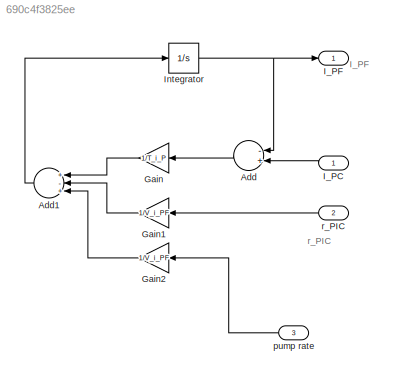
MODEL slx_690c4f3825ee
KIND model
CONFIG AbsTol = auto
CONFIG EnableMultiTasking = off
CONFIG FixedStep = auto
CONFIG MaxStep = auto
CONFIG MinStep = auto
CONFIG RelTol = 1e-3
CONFIG SampleTimeConstraint = Unconstrained
CONFIG Solver = VariableStepAuto
CONFIG SolverName = VariableStepAuto
CONFIG StartTime = 0.0
CONFIG StopTime = 10.0
BLOCK [Sum] Add
  InputSameDT = off
  Inputs = -+
  OutDataTypeStr = Inherit: Inherit via internal rule
  Ports = [2, 1]
  SaturateOnIntegerOverflow = off
BLOCK [Sum] Add1
  InputSameDT = off
  Inputs = +-+
  OutDataTypeStr = Inherit: Inherit via internal rule
  Ports = [3, 1]
  SaturateOnIntegerOverflow = off
BLOCK [Gain] Gain
  Gain = 1/T_i_P
  OutDataTypeStr = Inherit: Inherit via internal rule
  ParamDataTypeStr = Inherit: Inherit via internal rule
  SaturateOnIntegerOverflow = off
BLOCK [Gain] Gain1
  Gain = 1/V_i_PF
  OutDataTypeStr = Inherit: Inherit via internal rule
  ParamDataTypeStr = Inherit: Inherit via internal rule
  SaturateOnIntegerOverflow = off
BLOCK [Gain] Gain2
  Gain = 1/V_i_PF
  OutDataTypeStr = Inherit: Inherit via internal rule
  ParamDataTypeStr = Inherit: Inherit via internal rule
  SaturateOnIntegerOverflow = off
BLOCK [Inport] I_PC 
  IconDisplay = Port number
BLOCK [Outport] I_PF 
  IconDisplay = Port number
BLOCK [Integrator] Integrator
  InitialCondition = IPT_B
  LimitOutput = on
  LowerSaturationLimit = 0
  Ports = [1, 1]
BLOCK [Inport] pump rate
  IconDisplay = Port number
  Port = 3
BLOCK [Inport] r_PIC 
  IconDisplay = Port number
  Port = 2
ANNOTATION (root): I_PF
ANNOTATION (root): r_PIC
LINE Add1:1 -> Integrator:1
LINE Add:1 -> Gain:1
LINE Gain1:1 -> Add1:2
LINE Gain2:1 -> Add1:3
LINE Gain:1 -> Add1:1
LINE I_PC :1 -> Add:2
NET Integrator:1 -> Add:1, I_PF :1
LINE pump rate:1 -> Gain2:1
LINE r_PIC :1 -> Gain1:1
note: NET lines group one-source signal fan-out (src -> all destinations, sorted); 1:1 wires keep LINE
